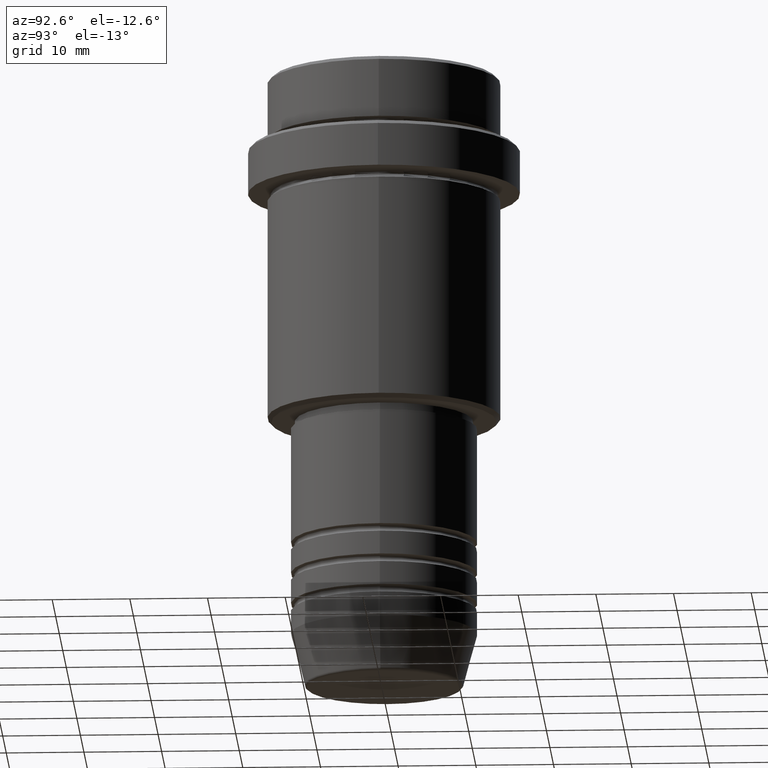
[diagram: clean part render]
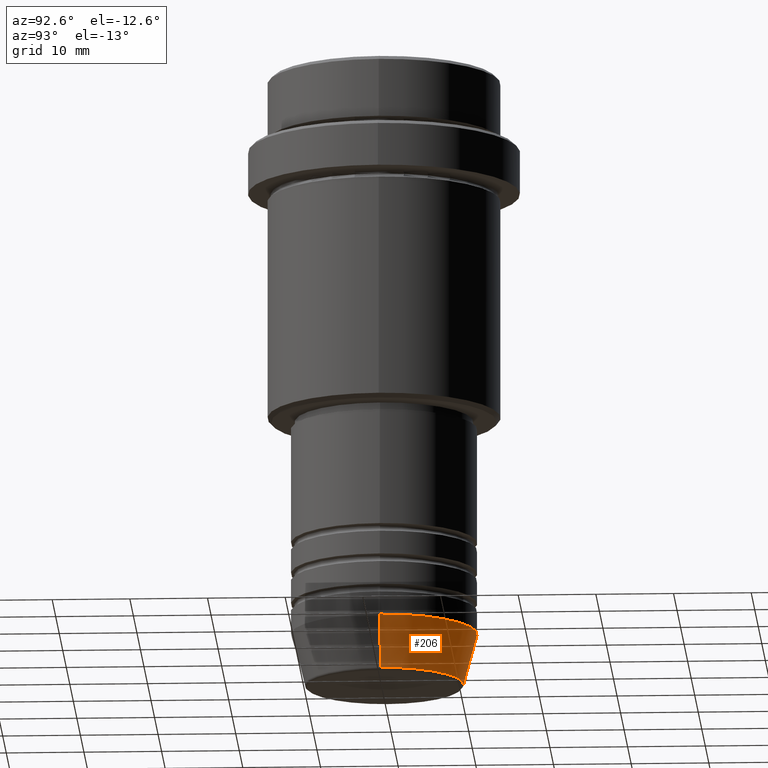
[diagram: same view with one face highlighted and labeled with its STEP entity id]
A machine part, auxiliary view. The second image highlights one B-rep face of the part: STEP entity #206.
In plain terms, the highlighted conical surface has half-angle 15 deg.
Its self-contained STEP definition (entity closure, byte-faithful):
#17 = CARTESIAN_POINT ( 'NONE',  ( 0.000000000000000000, 0.000000000000000000, -79.62940952255127058 ) ) ;
#28 = CARTESIAN_POINT ( 'NONE',  ( 10.22365507213719305, 0.000000000000000000, -79.62940952255127058 ) ) ;
#64 = ORIENTED_EDGE ( 'NONE', *, *, #770, .T. ) ;
#148 = CARTESIAN_POINT ( 'NONE',  ( -12.00000000000000000, 1.469576158976823947E-15, -73.00000000000001421 ) ) ;
#200 = VECTOR ( 'NONE', #665, 1000.000000000000000 ) ;
#206 = ADVANCED_FACE ( 'NONE', ( #548 ), #591, .T. ) ;
#248 = DIRECTION ( 'NONE',  ( -0.2588190451025213501, 3.169619151431772337E-17, 0.9659258262890680902 ) ) ;
#279 = CARTESIAN_POINT ( 'NONE',  ( 0.000000000000000000, 0.000000000000000000, -73.00000000000001421 ) ) ;
#320 = VECTOR ( 'NONE', #248, 1000.000000000000000 ) ;
#328 = DIRECTION ( 'NONE',  ( -0.000000000000000000, -0.000000000000000000, 1.000000000000000000 ) ) ;
#334 = CARTESIAN_POINT ( 'NONE',  ( 0.000000000000000000, 0.000000000000000000, -73.00000000000001421 ) ) ;
#378 = DIRECTION ( 'NONE',  ( 1.000000000000000000, 0.000000000000000000, 0.000000000000000000 ) ) ;
#442 = DIRECTION ( 'NONE',  ( 1.000000000000000000, 0.000000000000000000, 0.000000000000000000 ) ) ;
#454 = EDGE_CURVE ( 'NONE', #703, #1289, #635, .T. ) ;
#474 = VERTEX_POINT ( 'NONE', #831 ) ;
#475 = DIRECTION ( 'NONE',  ( -0.000000000000000000, -0.000000000000000000, 1.000000000000000000 ) ) ;
#498 = ORIENTED_EDGE ( 'NONE', *, *, #699, .T. ) ;
#548 = FACE_OUTER_BOUND ( 'NONE', #1387, .T. ) ;
#554 = CARTESIAN_POINT ( 'NONE',  ( 12.00000000000000000, 0.000000000000000000, -73.00000000000001421 ) ) ;
#591 = CONICAL_SURFACE ( 'NONE', #936, 12.00000000000000000, 0.2617993877991500740 ) ;
#635 = CIRCLE ( 'NONE', #938, 12.00000000000000000 ) ;
#665 = DIRECTION ( 'NONE',  ( 0.2588190451025213501, 0.000000000000000000, 0.9659258262890680902 ) ) ;
#699 = EDGE_CURVE ( 'NONE', #474, #1289, #1130, .T. ) ;
#703 = VERTEX_POINT ( 'NONE', #554 ) ;
#722 = ORIENTED_EDGE ( 'NONE', *, *, #1152, .F. ) ;
#755 = AXIS2_PLACEMENT_3D ( 'NONE', #17, #475, #1354 ) ;
#770 = EDGE_CURVE ( 'NONE', #857, #474, #965, .T. ) ;
#831 = CARTESIAN_POINT ( 'NONE',  ( -10.22365507213719305, 1.360806402472382744E-15, -79.62940952255127058 ) ) ;
#857 = VERTEX_POINT ( 'NONE', #28 ) ;
#936 = AXIS2_PLACEMENT_3D ( 'NONE', #334, #328, #442 ) ;
#938 = AXIS2_PLACEMENT_3D ( 'NONE', #279, #1036, #378 ) ;
#965 = CIRCLE ( 'NONE', #755, 10.22365507213719305 ) ;
#1036 = DIRECTION ( 'NONE',  ( -0.000000000000000000, -0.000000000000000000, 1.000000000000000000 ) ) ;
#1130 = LINE ( 'NONE', #1216, #320 ) ;
#1152 = EDGE_CURVE ( 'NONE', #857, #703, #1328, .T. ) ;
#1216 = CARTESIAN_POINT ( 'NONE',  ( -12.00000000000000000, 1.469576158976823947E-15, -73.00000000000001421 ) ) ;
#1289 = VERTEX_POINT ( 'NONE', #148 ) ;
#1300 = ORIENTED_EDGE ( 'NONE', *, *, #454, .F. ) ;
#1315 = CARTESIAN_POINT ( 'NONE',  ( 12.00000000000000000, 0.000000000000000000, -73.00000000000001421 ) ) ;
#1328 = LINE ( 'NONE', #1315, #200 ) ;
#1354 = DIRECTION ( 'NONE',  ( 1.000000000000000000, 0.000000000000000000, 0.000000000000000000 ) ) ;
#1387 = EDGE_LOOP ( 'NONE', ( #64, #498, #1300, #722 ) ) ;